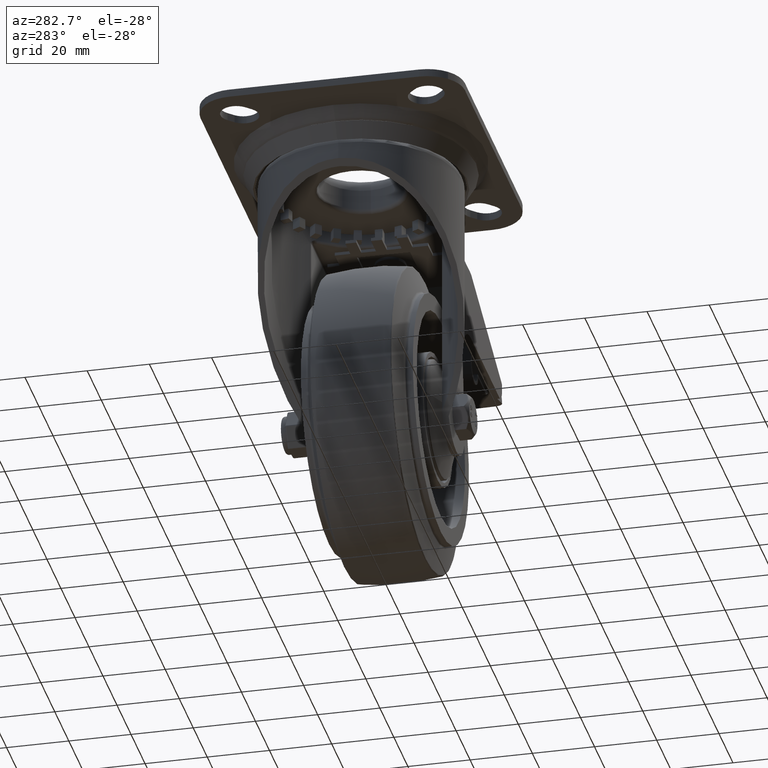
[diagram: clean part render]
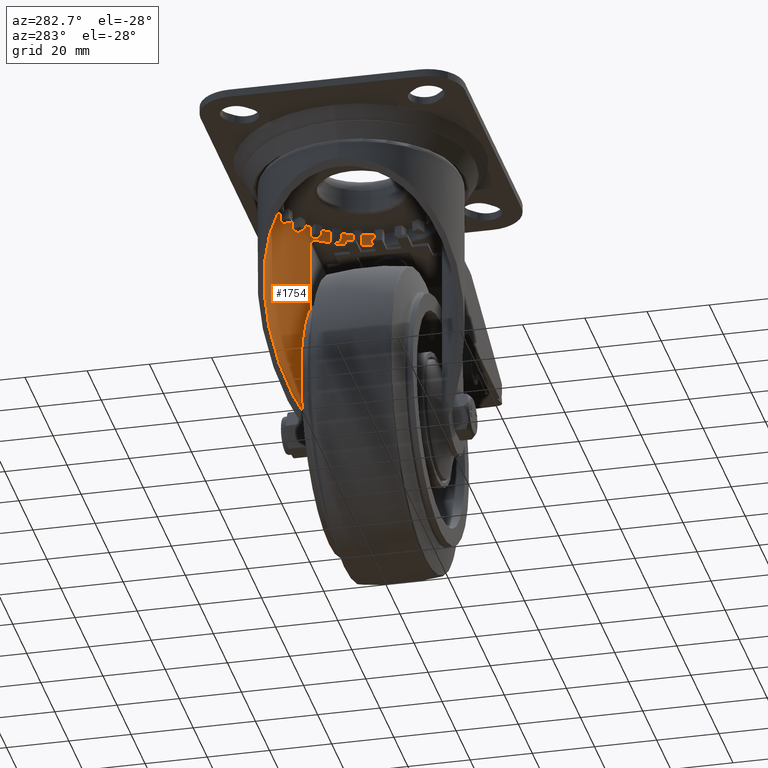
[diagram: same view with one face highlighted and labeled with its STEP entity id]
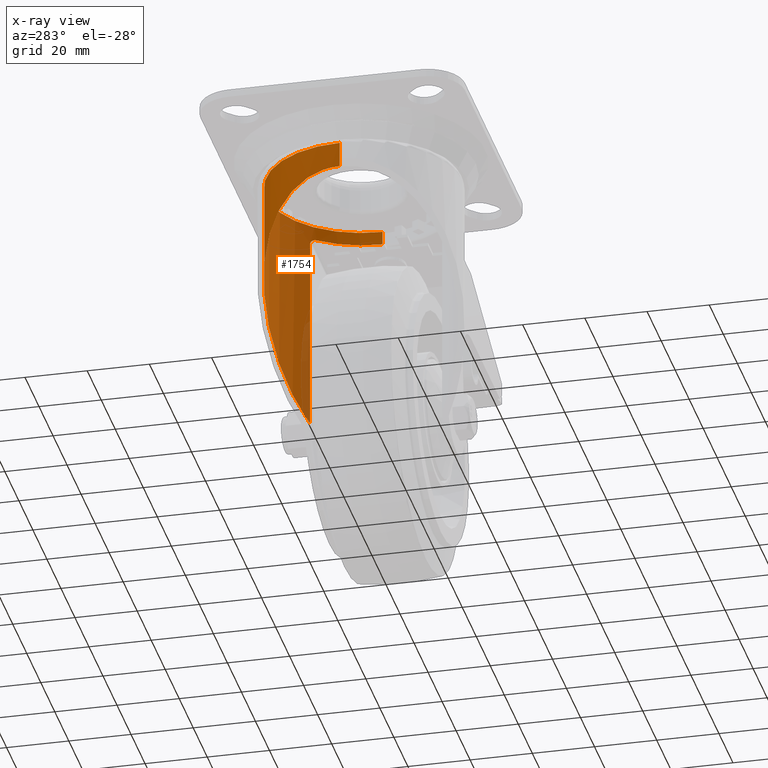
[diagram: x-ray of the same camera — body ghosted, the highlighted face saturated]
A machine part, auxiliary view. The second image highlights one B-rep face of the part: STEP entity #1754.
The next image is the same camera in x-ray: the body ghosted, the highlighted face saturated — about 7% of this face is hidden behind the body in this view.
In plain terms, the highlighted cylindrical surface (partial cylindrical patch) has radius 30.5 mm, axis along (0, 0, -1).
Its self-contained STEP definition (entity closure, byte-faithful):
#1754=ADVANCED_FACE('116:5864',(#3298),#3299,.F.);
#3298=FACE_OUTER_BOUND('',#6192,.T.);
#3299=CYLINDRICAL_SURFACE('',#6193,0.0305);
#6192=EDGE_LOOP('',(#15292,#15293,#15294,#15295,#15296,#15297,#15298));
#6193=AXIS2_PLACEMENT_3D('',#15299,#15300,#15301);
#15292=ORIENTED_EDGE('',*,*,#23726,.T.);
#15293=ORIENTED_EDGE('',*,*,#23791,.F.);
#15294=ORIENTED_EDGE('',*,*,#23731,.T.);
#15295=ORIENTED_EDGE('',*,*,#23790,.F.);
#15296=ORIENTED_EDGE('',*,*,#23768,.F.);
#15297=ORIENTED_EDGE('',*,*,#23756,.F.);
#15298=ORIENTED_EDGE('',*,*,#23745,.F.);
#15299=CARTESIAN_POINT('',(0.0,0.0,-0.0110881274492951));
#15300=DIRECTION('',(0.0,0.0,-1.0));
#15301=DIRECTION('',(1.0,1.22464679914735E-16,0.0));
#23726=EDGE_CURVE('',#27036,#27037,#27038,.T.);
#23731=EDGE_CURVE('',#27047,#27045,#27048,.T.);
#23745=EDGE_CURVE('116:6206',#27036,#27073,#27074,.T.);
#23756=EDGE_CURVE('116:6164',#27073,#27091,#27092,.T.);
#23768=EDGE_CURVE('116:6179',#27091,#27108,#27109,.T.);
#23790=EDGE_CURVE('116:6218',#27108,#27045,#27140,.T.);
#23791=EDGE_CURVE('116:6050',#27047,#27037,#27141,.T.);
#27036=VERTEX_POINT('',#32293);
#27037=VERTEX_POINT('',#32294);
#27038=LINE('',#32295,#32296);
#27045=VERTEX_POINT('',#32323);
#27047=VERTEX_POINT('',#32418);
#27048=LINE('',#32419,#32420);
#27073=VERTEX_POINT('',#32459);
#27074=CIRCLE('',#32460,0.0305);
#27091=VERTEX_POINT('',#32519);
#27092=B_SPLINE_CURVE_WITH_KNOTS('',3,(#32520,#32521,#32522,#32523,#32524,#32525,#32526,#32527,#32528,#32529,#32530,#32531),.UNSPECIFIED.,.F.,.F.,(4,2,2,2,2,4),(-0.00367449239477305,-0.00253244765894742,-0.00141177937771917,-0.000711361701951521,-0.000273600654596739,-0.0),.UNSPECIFIED.);
#27108=VERTEX_POINT('',#32562);
#27109=LINE('',#32563,#32564);
#27140=B_SPLINE_CURVE_WITH_KNOTS('',3,(#32692,#32693,#32694,#32695,#32696,#32697,#32698,#32699,#32700,#32701,#32702,#32703,#32704,#32705,#32706,#32707,#32708,#32709,#32710,#32711,#32712,#32713,#32714,#32715,#32716,#32717,#32718,#32719,#32720,#32721,#32722,#32723,#32724,#32725,#32726,#32727,#32728,#32729,#32730,#32731,#32732,#32733,#32734,#32735,#32736,#32737,#32738,#32739,#32740,#32741,#32742,#32743,#32744,#32745,#32746,#32747,#32748,#32749,#32750,#32751,#32752,#32753,#32754,#32755,#32756,#32757,#32758,#32759,#32760,#32761,#32762,#32763,#32764,#32765,#32766,#32767,#32768,#32769,#32770,#32771,#32772,#32773,#32774,#32775,#32776,#32777,#32778,#32779,#32780,#32781,#32782,#32783,#32784,#32785),.UNSPECIFIED.,.F.,.F.,(4,3,3,3,3,3,3,3,3,3,3,3,3,3,3,3,3,3,3,3,3,3,3,3,3,3,3,3,3,3,3,4),(-0.0942135763880831,-0.0795315877578292,-0.0671985534776576,-0.0621545055727737,-0.0574711581658814,-0.0554379117433729,-0.0449828648951884,-0.0343882852361721,-0.026350831191497,-0.0227156394291847,-0.020962139144999,-0.0147425828967038,-0.00860528471754029,-0.00279029266383561,-0.000297732817779028,0.00181983601097872,0.00776582352417276,0.0139165513792785,0.018934953135488,0.0219655121854881,0.0236751144638531,0.0344354480866007,0.0449178175568588,0.0553602623483078,0.0572704817942319,0.0590852413393148,0.0712737586423746,0.0827423690605019,0.0884766742695656,0.0919796433560005,0.0939328314639131,0.0942109794786293),.UNSPECIFIED.);
#27141=CIRCLE('',#32786,0.0305);
#32293=CARTESIAN_POINT('',(0.0305,-3.73517273739943E-18,-0.0155));
#32294=CARTESIAN_POINT('',(0.0305,3.73517273739943E-18,-0.0110881274492951));
#32295=CARTESIAN_POINT('',(0.0305,7.47034547479885E-18,-0.0110881274492951));
#32296=VECTOR('',#42126,1.0);
#32323=CARTESIAN_POINT('',(-0.0305,-3.73517273739943E-18,-0.019342458551432));
#32418=CARTESIAN_POINT('',(-0.0305,-7.47034547479885E-18,-0.0110881274492951));
#32419=CARTESIAN_POINT('',(-0.0305,-7.47034547479885E-18,-0.0110881274492951));
#32420=VECTOR('',#42131,1.0);
#32459=CARTESIAN_POINT('',(0.0235636096806957,0.0193650793650794,-0.0155));
#32460=AXIS2_PLACEMENT_3D('',#42155,#42156,#42157);
#32519=CARTESIAN_POINT('',(0.0218287053769309,0.0213015873015873,-0.0175));
#32520=CARTESIAN_POINT('',(0.0235636096806957,0.0193650793650794,-0.0155));
#32521=CARTESIAN_POINT('',(0.0233295801891853,0.0196498486390782,-0.0155));
#32522=CARTESIAN_POINT('',(0.0230894324483077,0.0199311269777038,-0.0155641676433821));
#32523=CARTESIAN_POINT('',(0.022631809497124,0.020449166206099,-0.0158170470984689));
#32524=CARTESIAN_POINT('',(0.022412451093257,0.0206882449657507,-0.0160041585824007));
#32525=CARTESIAN_POINT('',(0.0221150587810165,0.0210048109449967,-0.0164169052253771));
#32526=CARTESIAN_POINT('',(0.0220149233842896,0.0211093288958089,-0.0166031240744407));
#32527=CARTESIAN_POINT('',(0.0218986252241628,0.0212297988913342,-0.0169428348913456));
#32528=CARTESIAN_POINT('',(0.0218652759882052,0.0212640643863894,-0.0170818830576453));
#32529=CARTESIAN_POINT('',(0.02183467465875,0.0212954752712067,-0.0173168759494867));
#32530=CARTESIAN_POINT('',(0.0218287053769309,0.0213015873015873,-0.0174087997818011));
#32531=CARTESIAN_POINT('',(0.0218287053769309,0.0213015873015873,-0.0175));
#32562=CARTESIAN_POINT('',(0.0218287053770575,0.0213015873014577,-0.0812907490533834));
#32563=CARTESIAN_POINT('',(0.0218287053769309,0.0213015873015873,-0.0110881274492951));
#32564=VECTOR('',#42195,1.0);
#32692=CARTESIAN_POINT('',(0.0221189963606081,0.0209999999999859,-0.0817341002599941));
#32693=CARTESIAN_POINT('',(0.0197501874930738,0.0234950321295098,-0.0781100718693793));
#32694=CARTESIAN_POINT('',(0.0170276962080388,0.0255193831474175,-0.0741046678757214));
#32695=CARTESIAN_POINT('',(0.0140957065304227,0.0270473854079872,-0.0700081194774376));
#32696=CARTESIAN_POINT('',(0.0116328024842612,0.0283309243572651,-0.0665669731110449));
#32697=CARTESIAN_POINT('',(0.00902167248866056,0.0292607250650955,-0.0630601910501773));
#32698=CARTESIAN_POINT('',(0.0063739464367215,0.0298265453383694,-0.0596461346950397));
#32699=CARTESIAN_POINT('',(0.0052910615000874,0.0300579583466456,-0.0582498307998195));
#32700=CARTESIAN_POINT('',(0.00420238056593506,0.0302288053288859,-0.0568689014454861));
#32701=CARTESIAN_POINT('',(0.00311691332904793,0.0303403172577217,-0.0555136167293028));
#32702=CARTESIAN_POINT('',(0.00210906799034297,0.0304438549545475,-0.05425524859307));
#32703=CARTESIAN_POINT('',(0.00110402166451451,0.0304962319551192,-0.053019007746887));
#32704=CARTESIAN_POINT('',(0.000109529562272233,0.0304998033317428,-0.0518127878726987));
#32705=CARTESIAN_POINT('',(-0.000322223056831227,0.0305013538229006,-0.0512891149458638));
#32706=CARTESIAN_POINT('',(-0.000757513159256922,0.0304937968295355,-0.0507643680640728));
#32707=CARTESIAN_POINT('',(-0.00119929256150189,0.0304764121469691,-0.0502351420704313));
#32708=CARTESIAN_POINT('',(-0.00347094261626288,0.030387019307685,-0.0475138376109491));
#32709=CARTESIAN_POINT('',(-0.00588372029406206,0.0300338815043321,-0.0447140872691285));
#32710=CARTESIAN_POINT('',(-0.0083180619992234,0.0293438212333887,-0.0419829579069084));
#32711=CARTESIAN_POINT('',(-0.0107848923718751,0.0286445514342006,-0.0392153789560648));
#32712=CARTESIAN_POINT('',(-0.0132728008283833,0.0275996336269823,-0.0365192041409464));
#32713=CARTESIAN_POINT('',(-0.0156479941830778,0.0261799594737341,-0.0340211920599368));
#32714=CARTESIAN_POINT('',(-0.0174499068639013,0.0251029402684054,-0.0321261043877165));
#32715=CARTESIAN_POINT('',(-0.0191861613336734,0.0238114835937656,-0.0303449989155163));
#32716=CARTESIAN_POINT('',(-0.0207963679793744,0.0223105598062095,-0.0287243790715896));
#32717=CARTESIAN_POINT('',(-0.02152463465456,0.0216317197459049,-0.0279914026995026));
#32718=CARTESIAN_POINT('',(-0.0222271110360648,0.0209102376496816,-0.0272911577787958));
#32719=CARTESIAN_POINT('',(-0.0228983301017789,0.0201473690230255,-0.0266274272286283));
#32720=CARTESIAN_POINT('',(-0.023222104719306,0.0197793855874593,-0.026307264831583));
#32721=CARTESIAN_POINT('',(-0.0235408449955225,0.0193993940039755,-0.02599337427425));
#32722=CARTESIAN_POINT('',(-0.0238572218940643,0.0190021831245091,-0.0256830224890287));
#32723=CARTESIAN_POINT('',(-0.0249793910399086,0.0175933008850495,-0.0245822240447109));
#32724=CARTESIAN_POINT('',(-0.0260512888421953,0.0159862849646622,-0.0235468269700732));
#32725=CARTESIAN_POINT('',(-0.0269816051856991,0.0142212158974911,-0.022657552065963));
#32726=CARTESIAN_POINT('',(-0.0278996174317652,0.012479491128137,-0.0217800384569708));
#32727=CARTESIAN_POINT('',(-0.0286785135094,0.0105860531250675,-0.021045461495661));
#32728=CARTESIAN_POINT('',(-0.0292614985281835,0.00860317987055441,-0.0204985246181341));
#32729=CARTESIAN_POINT('',(-0.0298138675271617,0.00672443911494902,-0.0199803106575521));
#32730=CARTESIAN_POINT('',(-0.030189223771439,0.00476738192985311,-0.0196313285111242));
#32731=CARTESIAN_POINT('',(-0.030370351027493,0.00280923093868305,-0.0194629316366628));
#32732=CARTESIAN_POINT('',(-0.0304479900889564,0.00196988180664135,-0.0193907493733669));
#32733=CARTESIAN_POINT('',(-0.0304904078186695,0.00113058976873521,-0.0193513672408309));
#32734=CARTESIAN_POINT('',(-0.0304985437527013,0.000298041883908215,-0.019343811026869));
#32735=CARTESIAN_POINT('',(-0.0305054556831514,-0.000409254052093885,-0.0193373916010027));
#32736=CARTESIAN_POINT('',(-0.030487885108006,-0.00111708996268798,-0.0193537037009816));
#32737=CARTESIAN_POINT('',(-0.0304450945018076,-0.00182926782511642,-0.0193934625939426));
#32738=CARTESIAN_POINT('',(-0.0303249414249949,-0.0038290142416978,-0.0195051028286653));
#32739=CARTESIAN_POINT('',(-0.0300025145289703,-0.00584251029249957,-0.0198044244434804));
#32740=CARTESIAN_POINT('',(-0.029489749676151,-0.00778489974488755,-0.0202845866965761));
#32741=CARTESIAN_POINT('',(-0.0289593286054111,-0.00979417219689925,-0.0207812825504661));
#32742=CARTESIAN_POINT('',(-0.0282267387756536,-0.0117246053815598,-0.0214703836154017));
#32743=CARTESIAN_POINT('',(-0.0273447126666314,-0.0135098737662262,-0.0223109817233418));
#32744=CARTESIAN_POINT('',(-0.0266250642804871,-0.0149664808878498,-0.0229968288491663));
#32745=CARTESIAN_POINT('',(-0.0258070629363532,-0.0163259220602082,-0.0237826825898734));
#32746=CARTESIAN_POINT('',(-0.024935612529578,-0.0175631781797816,-0.0246299027461888));
#32747=CARTESIAN_POINT('',(-0.0244093529662396,-0.0183103438935871,-0.0251415299208939));
#32748=CARTESIAN_POINT('',(-0.0238638615249902,-0.0190131978971049,-0.0256752531934297));
#32749=CARTESIAN_POINT('',(-0.0233107775788501,-0.0196686971777334,-0.0262202838606068));
#32750=CARTESIAN_POINT('',(-0.0229987712596041,-0.0200384781472312,-0.026527747155336));
#32751=CARTESIAN_POINT('',(-0.0226836622673872,-0.0203942976946623,-0.0268394563051392));
#32752=CARTESIAN_POINT('',(-0.0223604137348322,-0.0207427553041328,-0.0271605420864285));
#32753=CARTESIAN_POINT('',(-0.0203258691525201,-0.0229359672451422,-0.0291814741897111));
#32754=CARTESIAN_POINT('',(-0.0180296480495918,-0.0247603630451282,-0.0315156936251972));
#32755=CARTESIAN_POINT('',(-0.0156162671779823,-0.0261988969123869,-0.034054564211674));
#32756=CARTESIAN_POINT('',(-0.0132652294819777,-0.027600270143065,-0.0365278499347449));
#32757=CARTESIAN_POINT('',(-0.0108044533176478,-0.0286348822456943,-0.0391945632938894));
#32758=CARTESIAN_POINT('',(-0.0083635009848919,-0.0293309026672503,-0.0419319895587557));
#32759=CARTESIAN_POINT('',(-0.00593184561864254,-0.0300242721240742,-0.044658989663325));
#32760=CARTESIAN_POINT('',(-0.00352091188757321,-0.0303812312739133,-0.0474552911946232));
#32761=CARTESIAN_POINT('',(-0.00124993015089076,-0.0304743773458605,-0.050174495676111));
#32762=CARTESIAN_POINT('',(-0.000834503154494118,-0.030491416405343,-0.0506719153303892));
#32763=CARTESIAN_POINT('',(-0.000423721652729466,-0.0304997518540045,-0.0511666996314159));
#32764=CARTESIAN_POINT('',(-1.82550869714472E-05,-0.0304999945369143,-0.0516578920998921));
#32765=CARTESIAN_POINT('',(0.000366948991016251,-0.0305002250921669,-0.052124538077422));
#32766=CARTESIAN_POINT('',(0.000753390377668362,-0.030493163484157,-0.0525952484317872));
#32767=CARTESIAN_POINT('',(0.00114121181530616,-0.0304786422859124,-0.053070301900245));
#32768=CARTESIAN_POINT('',(0.00374594714564422,-0.0303811131798963,-0.0562609160154119));
#32769=CARTESIAN_POINT('',(0.00640181632500887,-0.0299426439035513,-0.0596375564341607));
#32770=CARTESIAN_POINT('',(0.00898297150982368,-0.0291471477653251,-0.0630550144001095));
#32771=CARTESIAN_POINT('',(0.0114116724344176,-0.0283986370915821,-0.0662706224234048));
#32772=CARTESIAN_POINT('',(0.0137742311053253,-0.027336387798178,-0.069521820700216));
#32773=CARTESIAN_POINT('',(0.0159879819395809,-0.0259737258301468,-0.0726793761462875));
#32774=CARTESIAN_POINT('',(0.0170948573567087,-0.0252923948461312,-0.0742581538693233));
#32775=CARTESIAN_POINT('',(0.0181648451957958,-0.0245362046440752,-0.0758133817898658));
#32776=CARTESIAN_POINT('',(0.0191892449867899,-0.0237070216779114,-0.0773280018809436));
#32777=CARTESIAN_POINT('',(0.0198150297452172,-0.023200490861784,-0.0782532521359096));
#32778=CARTESIAN_POINT('',(0.0204238245717577,-0.0226667142816027,-0.0791633407589063));
#32779=CARTESIAN_POINT('',(0.0210137766009764,-0.0221059085532411,-0.0800542229415605));
#32780=CARTESIAN_POINT('',(0.021342722492098,-0.0217932140782236,-0.0805509616913969));
#32781=CARTESIAN_POINT('',(0.0216646995387291,-0.021473280033172,-0.0810400261195594));
#32782=CARTESIAN_POINT('',(0.0219830845346293,-0.0211422324824826,-0.0815263370308427));
#32783=CARTESIAN_POINT('',(0.0220284248447439,-0.0210950889336212,-0.0815955911973822));
#32784=CARTESIAN_POINT('',(0.0220737302754622,-0.0210476781129668,-0.0816648479112931));
#32785=CARTESIAN_POINT('',(0.0221189963605945,-0.0210000000000002,-0.0817341002599733));
#32786=AXIS2_PLACEMENT_3D('',#42233,#42234,#42235);
#42126=DIRECTION('',(0.0,0.0,1.0));
#42131=DIRECTION('',(-0.0,-0.0,-1.0));
#42155=CARTESIAN_POINT('',(0.0,0.0,-0.0155));
#42156=DIRECTION('',(0.0,-0.0,1.0));
#42157=DIRECTION('',(0.999754772761131,0.0221448490927159,0.0));
#42195=DIRECTION('',(-0.0,-0.0,-1.0));
#42233=CARTESIAN_POINT('',(0.0,0.0,-0.0110881274492951));
#42234=DIRECTION('',(0.0,0.0,-1.0));
#42235=DIRECTION('',(1.0,1.22464679914735E-16,0.0));